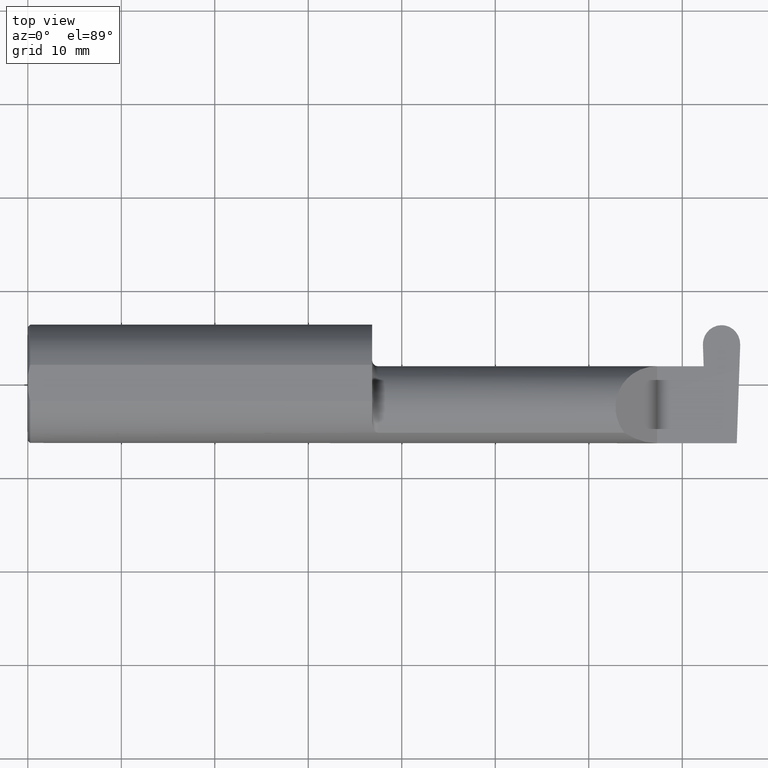
[diagram: clean part render]
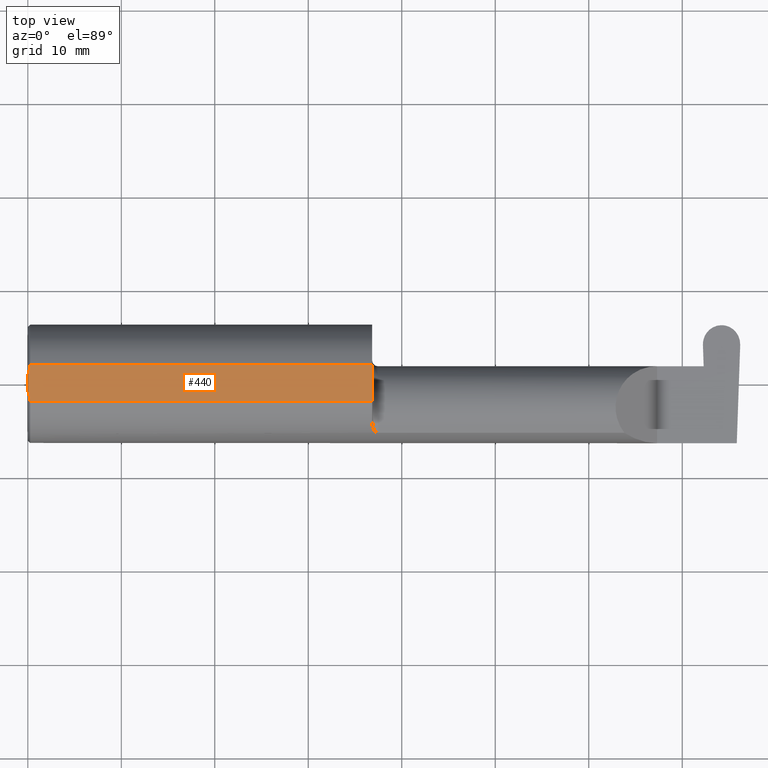
[diagram: same view with one face highlighted and labeled with its STEP entity id]
A machine part, top view. The second image highlights one B-rep face of the part: STEP entity #440.
In plain terms, the highlighted planar face has unit normal (0, 0, 1).
Its self-contained STEP definition (entity closure, byte-faithful):
#9 = CARTESIAN_POINT ( 'NONE',  ( 0.000000000000000000, -0.07650098038587520299, 0.2378499999999998671 ) ) ;
#15 = CARTESIAN_POINT ( 'NONE',  ( 1.450000000000000178, 0.07650098038587520299, 0.2378499999999998671 ) ) ;
#21 = CARTESIAN_POINT ( 'NONE',  ( 1.450000000000000178, -0.07650098038587527238, 0.2378499999999998671 ) ) ;
#33 = ORIENTED_EDGE ( 'NONE', *, *, #515, .F. ) ;
#42 = LINE ( 'NONE', #422, #378 ) ;
#85 = CARTESIAN_POINT ( 'NONE',  ( 0.009999999999999856226, -0.07650098038587520299, 0.2378499999999998671 ) ) ;
#100 = VERTEX_POINT ( 'NONE', #274 ) ;
#142 = DIRECTION ( 'NONE',  ( -1.000000000000000000, -0.000000000000000000, -0.000000000000000000 ) ) ;
#143 = ORIENTED_EDGE ( 'NONE', *, *, #158, .T. ) ;
#145 = ORIENTED_EDGE ( 'NONE', *, *, #410, .F. ) ;
#146 = B_SPLINE_CURVE_WITH_KNOTS ( 'NONE', 3,
 ( #524, #147, #361, #365 ),
 .UNSPECIFIED., .F., .F.,
 ( 4, 4 ),
 ( 0.01593449416844770414, 0.01712021724825603733 ),
 .UNSPECIFIED. ) ;
#147 = CARTESIAN_POINT ( 'NONE',  ( 0.002005502345409059580, 0.04647171987093979412, 0.2378499999999998671 ) ) ;
#153 = CARTESIAN_POINT ( 'NONE',  ( 0.000000000000000000, -0.03090954545120560767, 0.2378499999999998671 ) ) ;
#157 = LINE ( 'NONE', #549, #192 ) ;
#158 = EDGE_CURVE ( 'NONE', #334, #565, #352, .T. ) ;
#178 = VERTEX_POINT ( 'NONE', #15 ) ;
#192 = VECTOR ( 'NONE', #203, 39.37007874015748143 ) ;
#195 = EDGE_CURVE ( 'NONE', #565, #178, #287, .T. ) ;
#203 = DIRECTION ( 'NONE',  ( -0.000000000000000000, 1.000000000000000000, -0.000000000000000000 ) ) ;
#208 = EDGE_CURVE ( 'NONE', #178, #100, #42, .T. ) ;
#219 = CARTESIAN_POINT ( 'NONE',  ( 0.000000000000000000, -0.03090954545120560767, 0.2378499999999998671 ) ) ;
#259 = EDGE_CURVE ( 'NONE', #275, #100, #146, .T. ) ;
#274 = CARTESIAN_POINT ( 'NONE',  ( 0.009999999999999856226, 0.07650098038587520299, 0.2378499999999998671 ) ) ;
#275 = VERTEX_POINT ( 'NONE', #419 ) ;
#283 = CARTESIAN_POINT ( 'NONE',  ( 0.009999999999999856226, -0.07650098038587520299, 0.2378499999999998671 ) ) ;
#287 = LINE ( 'NONE', #516, #517 ) ;
#297 = DIRECTION ( 'NONE',  ( -6.129676535826869480E-17, 1.000000000000000000, 0.000000000000000000 ) ) ;
#317 = B_SPLINE_CURVE_WITH_KNOTS ( 'NONE', 3,
 ( #283, #678, #611, #219 ),
 .UNSPECIFIED., .F., .F.,
 ( 4, 4 ),
 ( 0.01317593029100230795, 0.01435802289191462008 ),
 .UNSPECIFIED. ) ;
#334 = VERTEX_POINT ( 'NONE', #85 ) ;
#352 = LINE ( 'NONE', #9, #679 ) ;
#361 = CARTESIAN_POINT ( 'NONE',  ( 0.005466242398876384675, 0.06169385855649840017, 0.2378499999999998671 ) ) ;
#365 = CARTESIAN_POINT ( 'NONE',  ( 0.009999999999999856226, 0.07650098038587520299, 0.2378499999999998671 ) ) ;
#374 = ORIENTED_EDGE ( 'NONE', *, *, #195, .T. ) ;
#376 = DIRECTION ( 'NONE',  ( 1.000000000000000000, 0.000000000000000000, -0.000000000000000000 ) ) ;
#377 = VERTEX_POINT ( 'NONE', #153 ) ;
#378 = VECTOR ( 'NONE', #142, 39.37007874015748143 ) ;
#380 = CARTESIAN_POINT ( 'NONE',  ( 3.501298404146671484, 0.2498499999999998500, 0.2378499999999998671 ) ) ;
#401 = EDGE_LOOP ( 'NONE', ( #143, #374, #471, #446, #145, #33 ) ) ;
#410 = EDGE_CURVE ( 'NONE', #377, #275, #157, .T. ) ;
#419 = CARTESIAN_POINT ( 'NONE',  ( 0.000000000000000000, 0.03090954545120574992, 0.2378499999999998671 ) ) ;
#422 = CARTESIAN_POINT ( 'NONE',  ( 0.000000000000000000, 0.07650098038587520299, 0.2378499999999998671 ) ) ;
#440 = ADVANCED_FACE ( 'NONE', ( #500 ), #492, .T. ) ;
#446 = ORIENTED_EDGE ( 'NONE', *, *, #259, .F. ) ;
#450 = DIRECTION ( 'NONE',  ( 1.000000000000000000, 0.000000000000000000, 0.000000000000000000 ) ) ;
#471 = ORIENTED_EDGE ( 'NONE', *, *, #208, .T. ) ;
#473 = AXIS2_PLACEMENT_3D ( 'NONE', #380, #587, #376 ) ;
#492 = PLANE ( 'NONE',  #473 ) ;
#500 = FACE_OUTER_BOUND ( 'NONE', #401, .T. ) ;
#515 = EDGE_CURVE ( 'NONE', #334, #377, #317, .T. ) ;
#516 = CARTESIAN_POINT ( 'NONE',  ( 1.450000000000000178, 0.2498499999999997390, 0.2378499999999998671 ) ) ;
#517 = VECTOR ( 'NONE', #297, 39.37007874015748143 ) ;
#524 = CARTESIAN_POINT ( 'NONE',  ( 0.000000000000000000, 0.03090954545120574992, 0.2378499999999998671 ) ) ;
#549 = CARTESIAN_POINT ( 'NONE',  ( 0.000000000000000000, 0.2498499999999998500, 0.2378499999999998671 ) ) ;
#565 = VERTEX_POINT ( 'NONE', #21 ) ;
#587 = DIRECTION ( 'NONE',  ( 0.000000000000000000, 0.000000000000000000, 1.000000000000000000 ) ) ;
#611 = CARTESIAN_POINT ( 'NONE',  ( 0.001983148254845701515, -0.04629825796642599717, 0.2378499999999998671 ) ) ;
#678 = CARTESIAN_POINT ( 'NONE',  ( 0.005459900170181723050, -0.06167314502012866823, 0.2378499999999998671 ) ) ;
#679 = VECTOR ( 'NONE', #450, 39.37007874015748143 ) ;